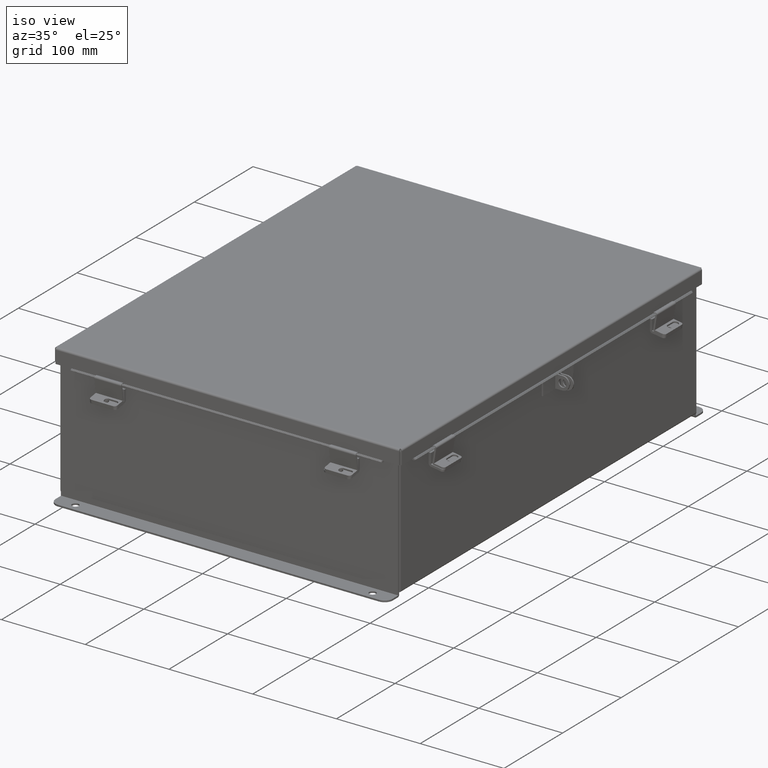
[diagram: clean part render]
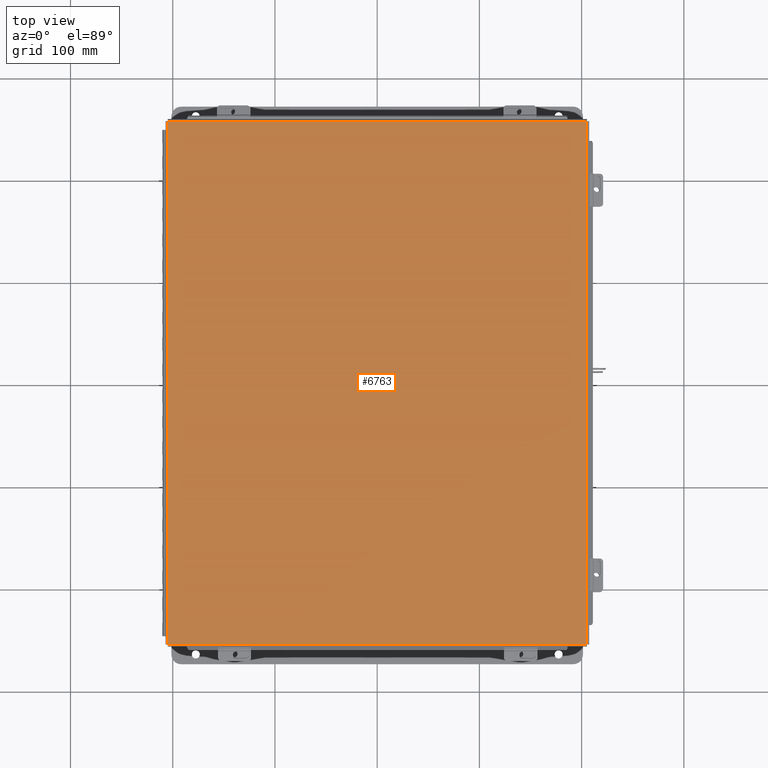
[diagram: tour spotlight — one face highlighted and labeled with its STEP entity id]
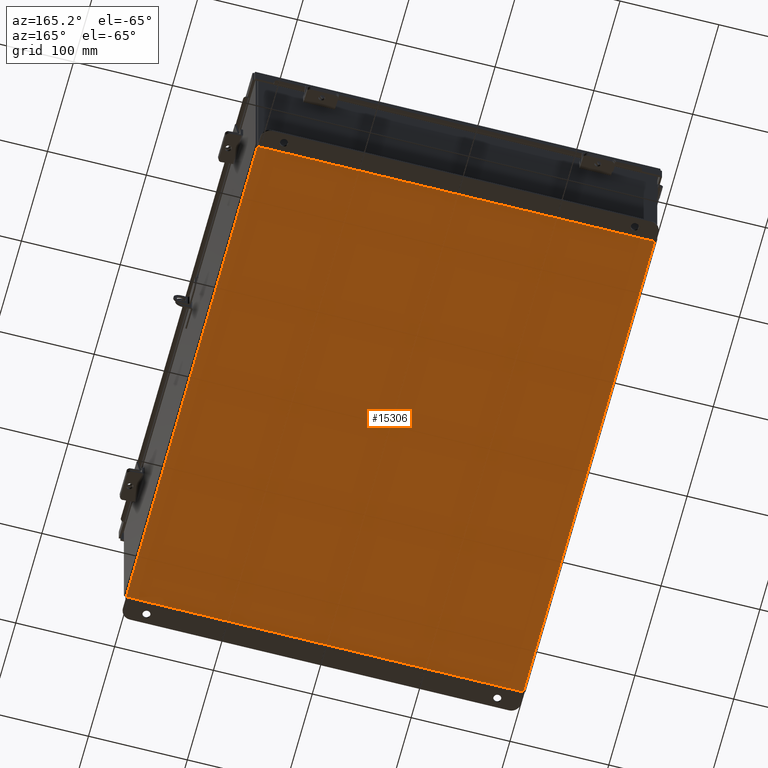
[diagram: tour spotlight — one face highlighted and labeled with its STEP entity id]
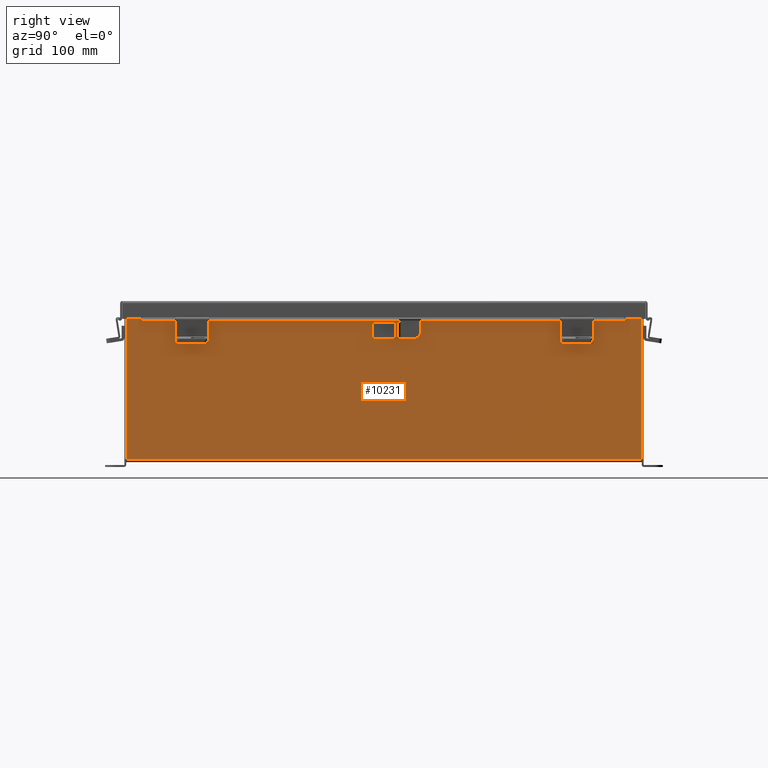
[diagram: tour spotlight — one face highlighted and labeled with its STEP entity id]
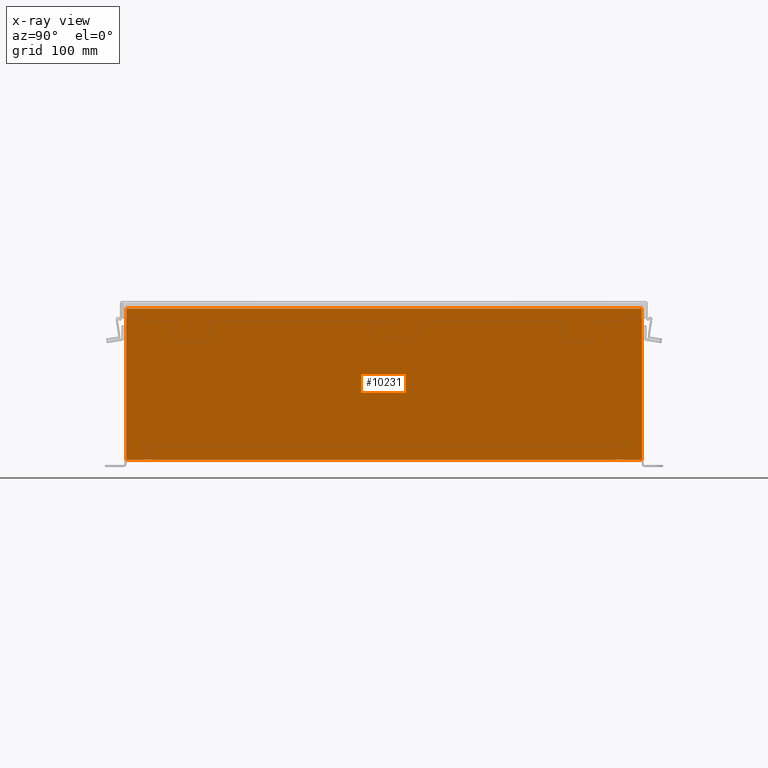
[diagram: x-ray of the same camera — body ghosted, this tour face saturated]
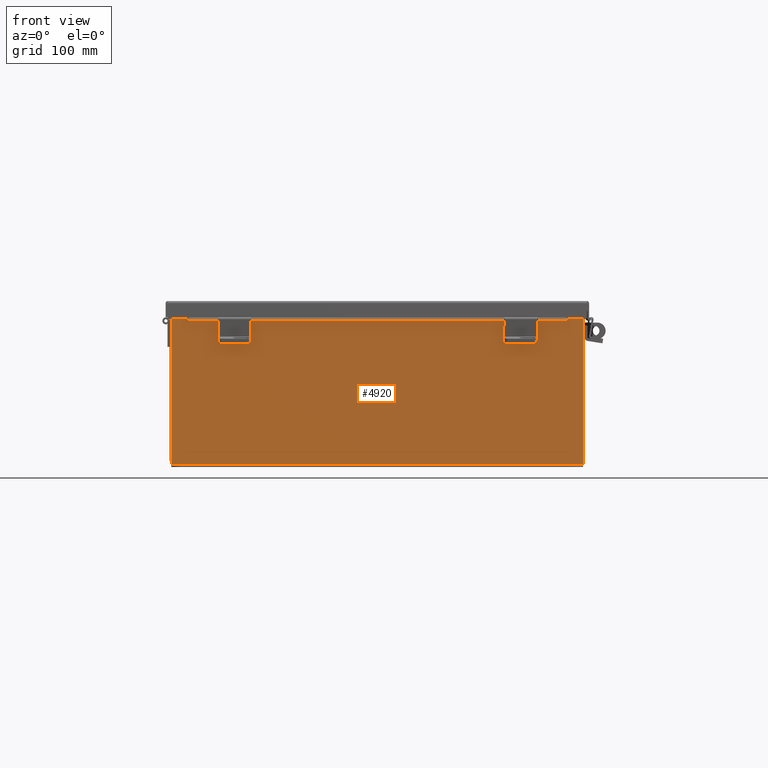
[diagram: tour spotlight — one face highlighted and labeled with its STEP entity id]
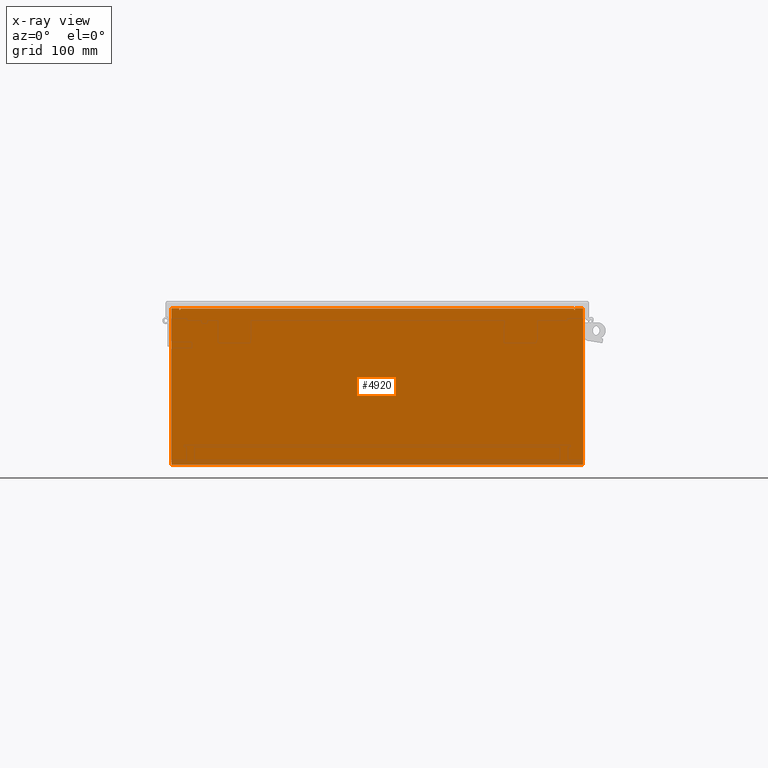
[diagram: x-ray of the same camera — body ghosted, this tour face saturated]
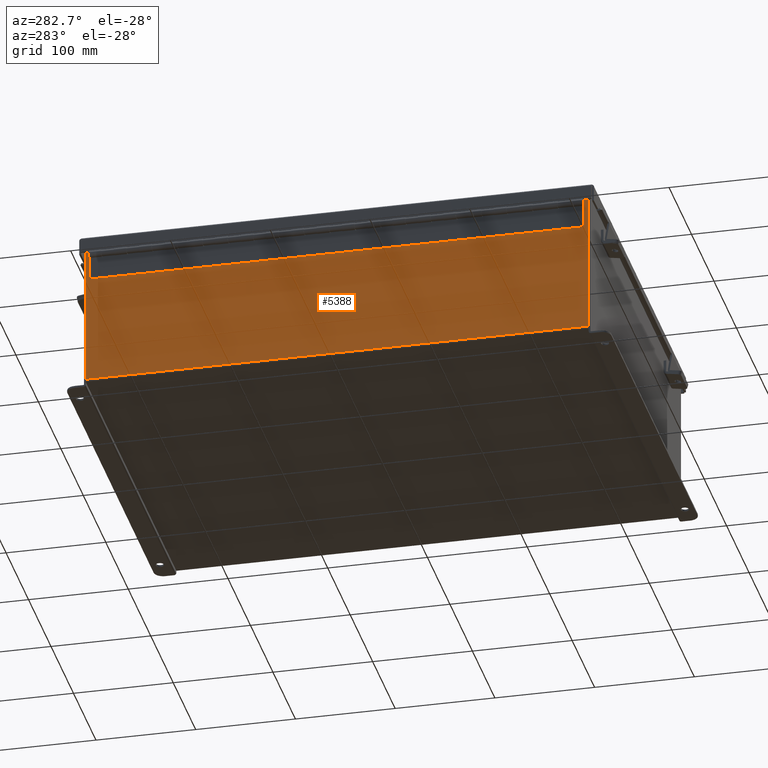
[diagram: tour spotlight — one face highlighted and labeled with its STEP entity id]
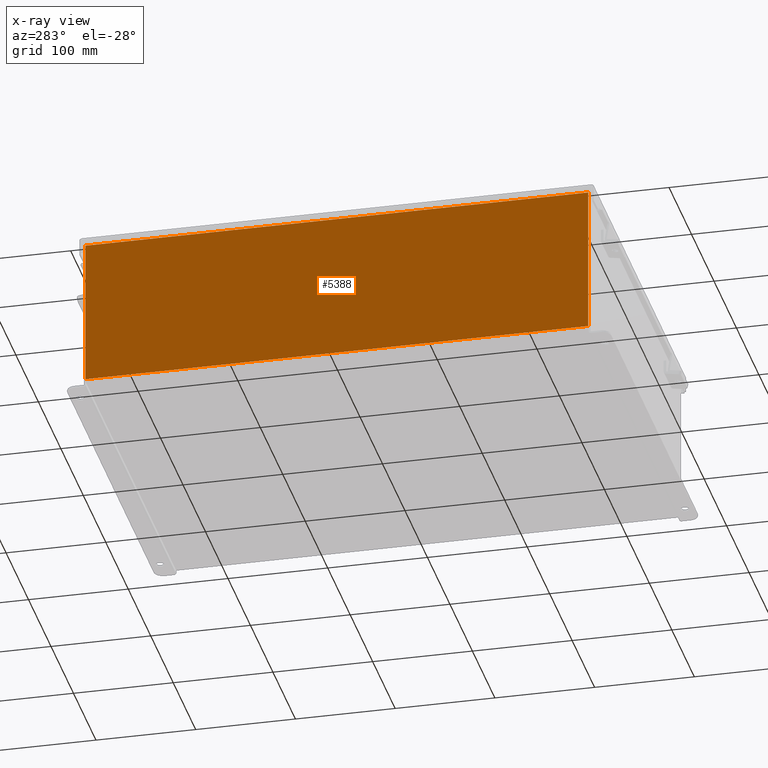
[diagram: x-ray of the same camera — body ghosted, this tour face saturated]
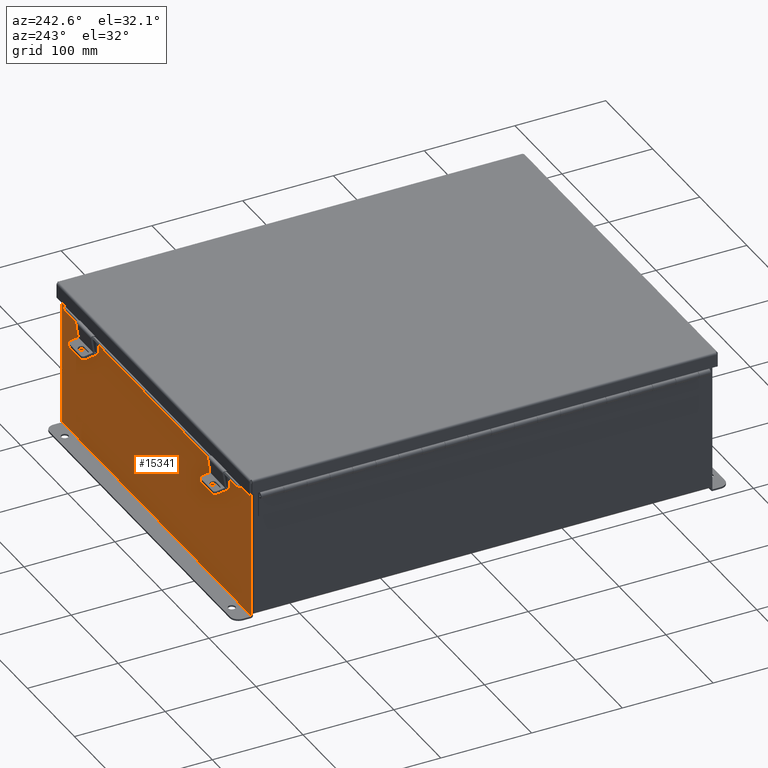
[diagram: tour spotlight — one face highlighted and labeled with its STEP entity id]
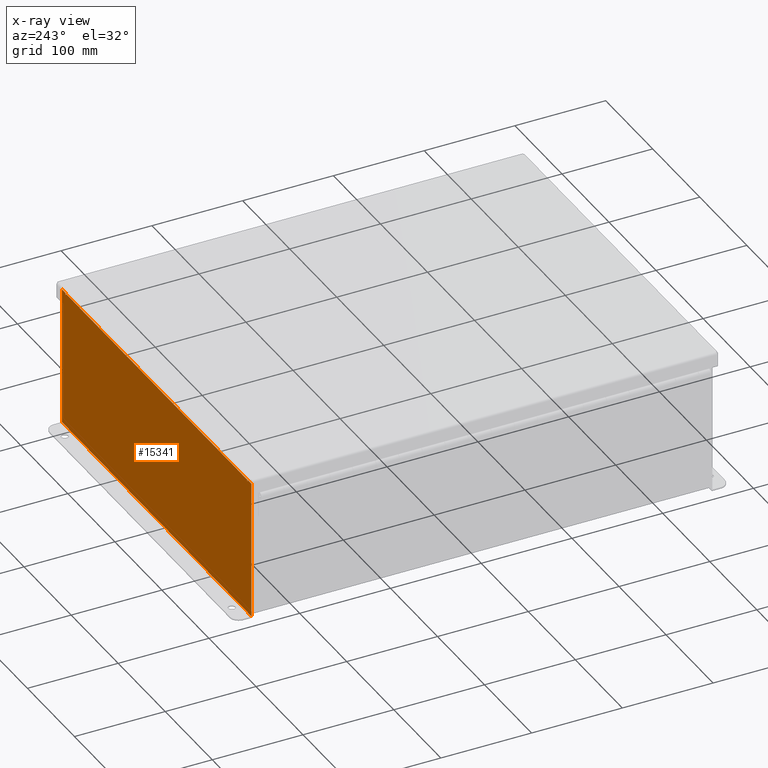
[diagram: x-ray of the same camera — body ghosted, this tour face saturated]
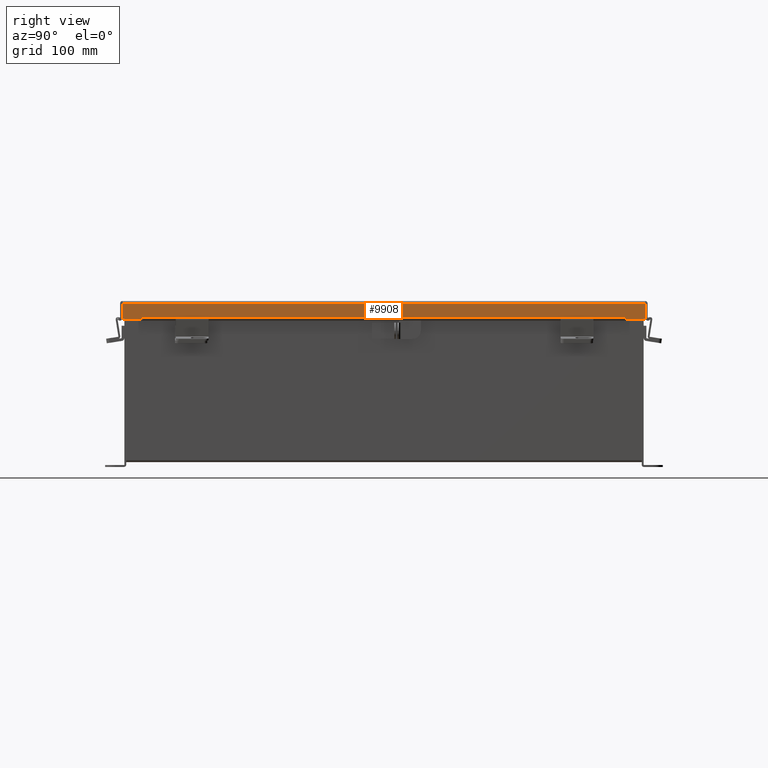
[diagram: tour spotlight — one face highlighted and labeled with its STEP entity id]
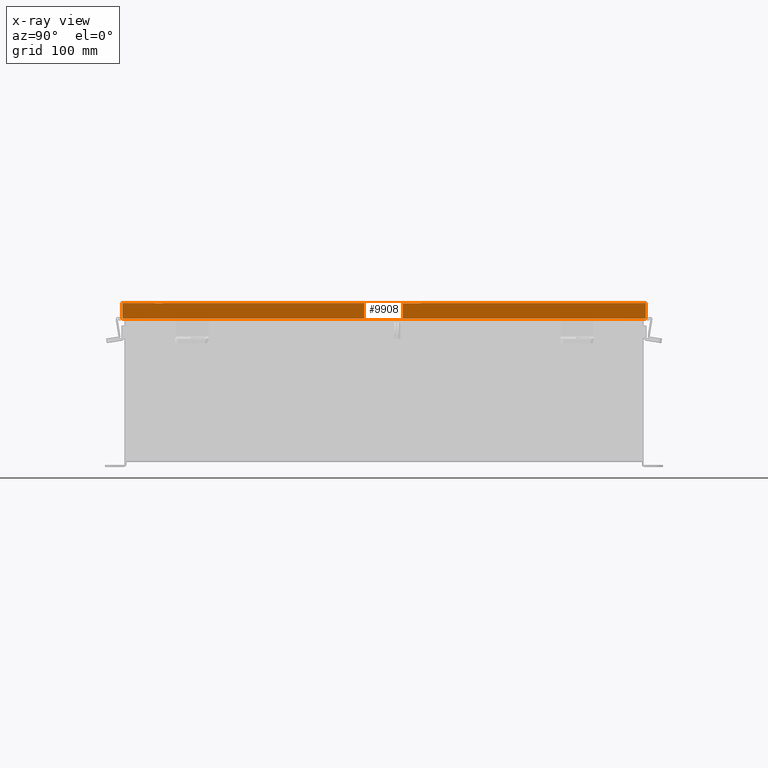
[diagram: x-ray of the same camera — body ghosted, this tour face saturated]
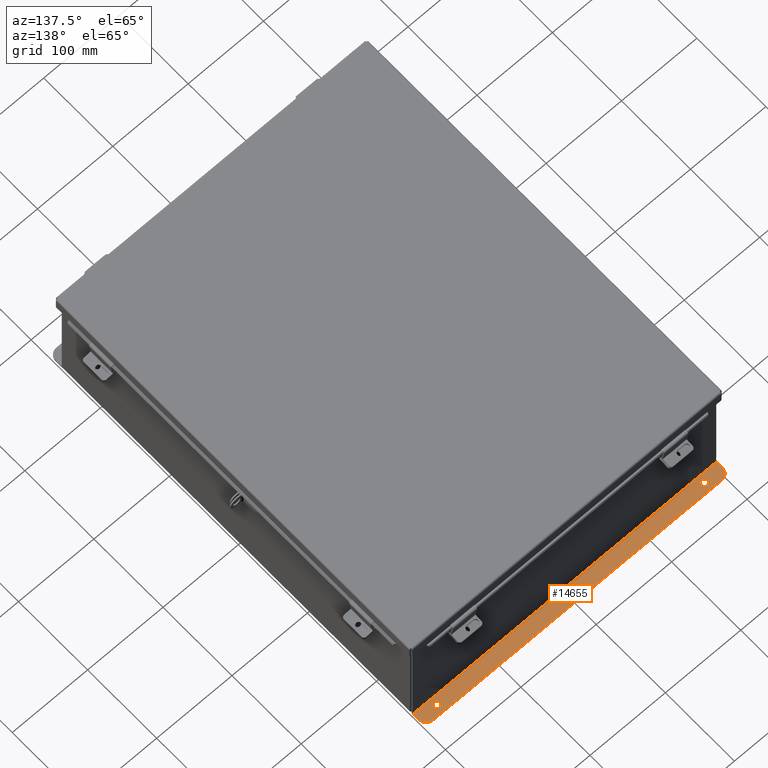
[diagram: tour spotlight — one face highlighted and labeled with its STEP entity id]
A machine part: a face-by-face anatomy tour. The part has 938 B-rep faces; the first image is the clean iso view, then the 8 largest visible faces are spotlighted one at a time (largest first), each with its STEP entity span.

Face 1 — top view, entity #6763. In plain terms, the highlighted planar face has unit normal (-0, -0, 1).
Definition (entity closure, byte-faithful):
#278 = EDGE_CURVE ( 'NONE', #19620, #10217, #14873, .T. ) ;
#578 = VECTOR ( 'NONE', #3265, 39.37007874015748100 ) ;
#842 = VECTOR ( 'NONE', #16515, 39.37007874015748100 ) ;
#1378 = EDGE_CURVE ( 'NONE', #10217, #16208, #5460, .T. ) ;
#1977 = CARTESIAN_POINT ( 'NONE',  ( 8.068550000000000100, 10.07447893218811600, -0.07470000000000015500 ) ) ;
#2604 = CARTESIAN_POINT ( 'NONE',  ( -8.068549999999998300, -10.07447893218815200, -0.07469999999999907300 ) ) ;
#2876 = CARTESIAN_POINT ( 'NONE',  ( 8.068550000000000100, -10.06855000000001600, -0.07470000000000015500 ) ) ;
#3265 = DIRECTION ( 'NONE',  ( 1.000000000000000000, 2.258600338820354400E-033, -0.0000000000000000000 ) ) ;
#4942 = ORIENTED_EDGE ( 'NONE', *, *, #7373, .T. ) ;
#5221 = LINE ( 'NONE', #2604, #21476 ) ;
#5460 = LINE ( 'NONE', #1977, #842 ) ;
#5511 = CARTESIAN_POINT ( 'NONE',  ( -8.074478932188133800, 10.06854999999998100, -0.07470000000000015500 ) ) ;
#6502 = CARTESIAN_POINT ( 'NONE',  ( 8.068550000000000100, 10.06854999999998100, -0.07470000000000015500 ) ) ;
#6763 = ADVANCED_FACE ( 'NONE', ( #22045 ), #11954, .T. ) ;
#7373 = EDGE_CURVE ( 'NONE', #19088, #19620, #5221, .T. ) ;
#7616 = LINE ( 'NONE', #8020, #16787 ) ;
#8020 = CARTESIAN_POINT ( 'NONE',  ( 8.074478932188135600, -10.06855000000001600, -0.07470000000000015500 ) ) ;
#10217 = VERTEX_POINT ( 'NONE', #6502 ) ;
#11954 = PLANE ( 'NONE',  #15662 ) ;
#14791 = EDGE_LOOP ( 'NONE', ( #15366, #17441, #20708, #4942 ) ) ;
#14873 = LINE ( 'NONE', #5511, #578 ) ;
#15325 = DIRECTION ( 'NONE',  ( -1.000000000000000000, -2.258600338820354400E-033, 0.0000000000000000000 ) ) ;
#15366 = ORIENTED_EDGE ( 'NONE', *, *, #278, .T. ) ;
#15662 = AXIS2_PLACEMENT_3D ( 'NONE', #17977, #21314, #15325 ) ;
#16208 = VERTEX_POINT ( 'NONE', #2876 ) ;
#16515 = DIRECTION ( 'NONE',  ( -2.258600338820354400E-033, -1.000000000000000000, -0.0000000000000000000 ) ) ;
#16787 = VECTOR ( 'NONE', #20167, 39.37007874015748100 ) ;
#17295 = EDGE_CURVE ( 'NONE', #16208, #19088, #7616, .T. ) ;
#17312 = DIRECTION ( 'NONE',  ( 2.258600338820354400E-033, 1.000000000000000000, -0.0000000000000000000 ) ) ;
#17441 = ORIENTED_EDGE ( 'NONE', *, *, #1378, .T. ) ;
#17977 = CARTESIAN_POINT ( 'NONE',  ( 0.0000000000000000000, 0.0000000000000000000, -0.07470000000000015500 ) ) ;
#19088 = VERTEX_POINT ( 'NONE', #21698 ) ;
#19620 = VERTEX_POINT ( 'NONE', #20089 ) ;
#20089 = CARTESIAN_POINT ( 'NONE',  ( -8.068549999999998300, 10.06854999999998100, -0.07470000000000015500 ) ) ;
#20167 = DIRECTION ( 'NONE',  ( -1.000000000000000000, -2.258600338820354400E-033, -0.0000000000000000000 ) ) ;
#20708 = ORIENTED_EDGE ( 'NONE', *, *, #17295, .T. ) ;
#21314 = DIRECTION ( 'NONE',  ( -0.0000000000000000000, 0.0000000000000000000, -1.000000000000000000 ) ) ;
#21476 = VECTOR ( 'NONE', #17312, 39.37007874015748100 ) ;
#21698 = CARTESIAN_POINT ( 'NONE',  ( -8.068549999999998300, -10.06855000000001600, -0.07469999999999907300 ) ) ;
#22045 = FACE_OUTER_BOUND ( 'NONE', #14791, .T. ) ;

Face 2 — auxiliary view, entity #15306. In plain terms, the highlighted planar face has unit normal (0, 0, -1).
Definition (entity closure, byte-faithful):
#909 = FACE_OUTER_BOUND ( 'NONE', #10105, .T. ) ;
#1624 = VECTOR ( 'NONE', #19201, 39.37007874015748100 ) ;
#2149 = EDGE_CURVE ( 'NONE', #16417, #21016, #2190, .T. ) ;
#2190 = LINE ( 'NONE', #12548, #1624 ) ;
#2337 = AXIS2_PLACEMENT_3D ( 'NONE', #17478, #19333, #8932 ) ;
#2803 = DIRECTION ( 'NONE',  ( -0.0000000000000000000, 1.000000000000000000, 8.208677865577646300E-017 ) ) ;
#4597 = ORIENTED_EDGE ( 'NONE', *, *, #11746, .T. ) ;
#4973 = CARTESIAN_POINT ( 'NONE',  ( 7.912300000000002800, 9.925299999999992900, -0.07469999999999994700 ) ) ;
#5170 = DIRECTION ( 'NONE',  ( 1.000000000000000000, -1.365923996832131600E-016, 0.0000000000000000000 ) ) ;
#5197 = VECTOR ( 'NONE', #2803, 39.37007874015748100 ) ;
#5503 = PLANE ( 'NONE',  #2337 ) ;
#6142 = EDGE_CURVE ( 'NONE', #12756, #15112, #10891, .T. ) ;
#6297 = LINE ( 'NONE', #18335, #5197 ) ;
#7440 = VECTOR ( 'NONE', #5170, 39.37007874015748100 ) ;
#7461 = ORIENTED_EDGE ( 'NONE', *, *, #7805, .T. ) ;
#7805 = EDGE_CURVE ( 'NONE', #12756, #21016, #6297, .T. ) ;
#7820 = CARTESIAN_POINT ( 'NONE',  ( -7.912299999999996600, 9.925299999999998200, -0.07470000000000000300 ) ) ;
#8611 = CARTESIAN_POINT ( 'NONE',  ( -7.912299999999996600, -9.925299999999998200, -0.07470000000000130700 ) ) ;
#8932 = DIRECTION ( 'NONE',  ( -1.000000000000000000, 0.0000000000000000000, -0.0000000000000000000 ) ) ;
#10105 = EDGE_LOOP ( 'NONE', ( #10167, #4597, #22114, #7461 ) ) ;
#10167 = ORIENTED_EDGE ( 'NONE', *, *, #2149, .F. ) ;
#10891 = LINE ( 'NONE', #12764, #7440 ) ;
#11746 = EDGE_CURVE ( 'NONE', #16417, #15112, #14543, .T. ) ;
#12548 = CARTESIAN_POINT ( 'NONE',  ( -7.999999999999996400, 9.925299999999998200, -0.07470000000000000300 ) ) ;
#12640 = DIRECTION ( 'NONE',  ( -0.0000000000000000000, -1.000000000000000000, -0.0000000000000000000 ) ) ;
#12756 = VERTEX_POINT ( 'NONE', #8611 ) ;
#12764 = CARTESIAN_POINT ( 'NONE',  ( -7.999999999999996400, -9.925299999999998200, -0.07470000000000000300 ) ) ;
#14543 = LINE ( 'NONE', #21369, #18616 ) ;
#15112 = VERTEX_POINT ( 'NONE', #16962 ) ;
#15306 = ADVANCED_FACE ( 'NONE', ( #909 ), #5503, .T. ) ;
#16417 = VERTEX_POINT ( 'NONE', #4973 ) ;
#16962 = CARTESIAN_POINT ( 'NONE',  ( 7.912300000000002800, -9.925300000000000000, -0.07470000000000000300 ) ) ;
#17478 = CARTESIAN_POINT ( 'NONE',  ( 0.0000000000000000000, 0.0000000000000000000, -0.07470000000000000300 ) ) ;
#18335 = CARTESIAN_POINT ( 'NONE',  ( -7.912299999999996600, -9.925299999999998200, -0.07470000000000130700 ) ) ;
#18616 = VECTOR ( 'NONE', #12640, 39.37007874015748100 ) ;
#19201 = DIRECTION ( 'NONE',  ( -1.000000000000000000, -0.0000000000000000000, -0.0000000000000000000 ) ) ;
#19333 = DIRECTION ( 'NONE',  ( 0.0000000000000000000, 0.0000000000000000000, -1.000000000000000000 ) ) ;
#21016 = VERTEX_POINT ( 'NONE', #7820 ) ;
#21369 = CARTESIAN_POINT ( 'NONE',  ( 7.912300000000002800, 9.925299999999996500, -0.07469999999999994700 ) ) ;
#22114 = ORIENTED_EDGE ( 'NONE', *, *, #6142, .F. ) ;

Face 3 — right view, entity #10231. An x-ray twin of the same camera follows (body ghosted, this face saturated) — the face is partly hidden behind the body. In plain terms, the highlighted planar face has unit normal (-1, 0, 0).
Definition (entity closure, byte-faithful):
#593 = DIRECTION ( 'NONE',  ( -0.0000000000000000000, -1.000000000000000000, -0.0000000000000000000 ) ) ;
#1146 = VECTOR ( 'NONE', #593, 39.37007874015748100 ) ;
#1733 = EDGE_CURVE ( 'NONE', #2359, #7485, #13202, .T. ) ;
#2006 = CARTESIAN_POINT ( 'NONE',  ( 8.000000000000003600, -9.925300000000000000, 0.01299999999999984300 ) ) ;
#2359 = VERTEX_POINT ( 'NONE', #19436 ) ;
#2675 = FACE_OUTER_BOUND ( 'NONE', #20080, .T. ) ;
#3644 = EDGE_CURVE ( 'NONE', #7674, #7485, #5650, .T. ) ;
#4620 = ORIENTED_EDGE ( 'NONE', *, *, #1733, .F. ) ;
#4816 = DIRECTION ( 'NONE',  ( -1.000000000000000000, 0.0000000000000000000, 3.548703509357741000E-015 ) ) ;
#5076 = VECTOR ( 'NONE', #17102, 39.37007874015748100 ) ;
#5650 = LINE ( 'NONE', #19895, #5076 ) ;
#6385 = ORIENTED_EDGE ( 'NONE', *, *, #3644, .T. ) ;
#6702 = CARTESIAN_POINT ( 'NONE',  ( 8.000000000000023100, 9.925299999999992900, 5.837600000000000100 ) ) ;
#6741 = DIRECTION ( 'NONE',  ( 3.548703509357741800E-015, -3.735477378271307500E-016, 1.000000000000000000 ) ) ;
#7485 = VERTEX_POINT ( 'NONE', #2006 ) ;
#7674 = VERTEX_POINT ( 'NONE', #21505 ) ;
#7946 = EDGE_CURVE ( 'NONE', #2359, #11475, #21451, .T. ) ;
#9057 = ORIENTED_EDGE ( 'NONE', *, *, #22293, .T. ) ;
#9991 = CARTESIAN_POINT ( 'NONE',  ( 8.000000000000003600, -9.925300000000000000, 0.01299999999999984300 ) ) ;
#10231 = ADVANCED_FACE ( 'NONE', ( #2675 ), #22098, .F. ) ;
#10903 = CARTESIAN_POINT ( 'NONE',  ( 8.000000000000023100, 9.925299999999996500, 5.837600000000000100 ) ) ;
#11475 = VERTEX_POINT ( 'NONE', #6702 ) ;
#12669 = VECTOR ( 'NONE', #15918, 39.37007874015748100 ) ;
#13202 = LINE ( 'NONE', #9991, #12669 ) ;
#15918 = DIRECTION ( 'NONE',  ( -0.0000000000000000000, -1.000000000000000000, -0.0000000000000000000 ) ) ;
#16897 = DIRECTION ( 'NONE',  ( 3.548703509357741000E-015, 0.0000000000000000000, 1.000000000000000000 ) ) ;
#17049 = CARTESIAN_POINT ( 'NONE',  ( 8.000000000000003600, 9.925299999999998200, -2.494518699214680400E-014 ) ) ;
#17102 = DIRECTION ( 'NONE',  ( -3.548703509357741800E-015, 0.0000000000000000000, -1.000000000000000000 ) ) ;
#18562 = CARTESIAN_POINT ( 'NONE',  ( 8.000000000000003600, 0.0000000000000000000, -2.865025583355396000E-014 ) ) ;
#18982 = LINE ( 'NONE', #10903, #1146 ) ;
#19436 = CARTESIAN_POINT ( 'NONE',  ( 8.000000000000003600, 9.925299999999992900, 0.01299999999999984300 ) ) ;
#19895 = CARTESIAN_POINT ( 'NONE',  ( 8.000000000000003600, -9.925300000000000000, -2.865025583355396000E-014 ) ) ;
#20080 = EDGE_LOOP ( 'NONE', ( #9057, #6385, #4620, #21844 ) ) ;
#20680 = AXIS2_PLACEMENT_3D ( 'NONE', #18562, #4816, #16897 ) ;
#20923 = VECTOR ( 'NONE', #6741, 39.37007874015748100 ) ;
#21451 = LINE ( 'NONE', #17049, #20923 ) ;
#21505 = CARTESIAN_POINT ( 'NONE',  ( 8.000000000000023100, -9.925300000000000000, 5.837600000000000100 ) ) ;
#21844 = ORIENTED_EDGE ( 'NONE', *, *, #7946, .T. ) ;
#22098 = PLANE ( 'NONE',  #20680 ) ;
#22293 = EDGE_CURVE ( 'NONE', #11475, #7674, #18982, .T. ) ;

Face 4 — front view, entity #4920. An x-ray twin of the same camera follows (body ghosted, this face saturated) — the face is partly hidden behind the body. In plain terms, the highlighted planar face has unit normal (-0, 1, -0).
Definition (entity closure, byte-faithful):
#157 = DIRECTION ( 'NONE',  ( 4.910036603141682400E-031, 1.000000000000000000, -0.0000000000000000000 ) ) ;
#209 = LINE ( 'NONE', #22349, #13380 ) ;
#795 = CARTESIAN_POINT ( 'NONE',  ( -7.925299999999992000, 0.0000000000000000000, -3.099299999999999900 ) ) ;
#913 = VERTEX_POINT ( 'NONE', #1919 ) ;
#1014 = VERTEX_POINT ( 'NONE', #14169 ) ;
#1346 = VECTOR ( 'NONE', #21010, 39.37007874015748100 ) ;
#1415 = VERTEX_POINT ( 'NONE', #4454 ) ;
#1585 = DIRECTION ( 'NONE',  ( 0.0000000000000000000, 0.0000000000000000000, -1.000000000000000000 ) ) ;
#1662 = VERTEX_POINT ( 'NONE', #11317 ) ;
#1710 = VERTEX_POINT ( 'NONE', #11493 ) ;
#1919 = CARTESIAN_POINT ( 'NONE',  ( -7.582299999999992900, 2.185478394931410600E-015, 2.912299999999998800 ) ) ;
#2823 = CARTESIAN_POINT ( 'NONE',  ( -7.619649999999992900, 0.0000000000000000000, 2.925300000000000000 ) ) ;
#3061 = CARTESIAN_POINT ( 'NONE',  ( -7.925299999999992000, 0.0000000000000000000, 2.925300000000000000 ) ) ;
#3070 = LINE ( 'NONE', #15095, #20953 ) ;
#3099 = LINE ( 'NONE', #21144, #12219 ) ;
#3101 = EDGE_CURVE ( 'NONE', #1662, #19123, #16438, .T. ) ;
#3121 = LINE ( 'NONE', #6463, #15786 ) ;
#3160 = DIRECTION ( 'NONE',  ( 4.910036603141682400E-031, 1.000000000000000000, -0.0000000000000000000 ) ) ;
#3387 = CARTESIAN_POINT ( 'NONE',  ( 7.600975000000005400, 0.0000000000000000000, 2.874949999999997900 ) ) ;
#4454 = CARTESIAN_POINT ( 'NONE',  ( -7.925299999999992000, 0.0000000000000000000, 2.925300000000000000 ) ) ;
#4560 = CARTESIAN_POINT ( 'NONE',  ( 7.925300000000007100, 0.0000000000000000000, 2.925300000000000000 ) ) ;
#4785 = CARTESIAN_POINT ( 'NONE',  ( -7.582299999999992900, 2.185478394931410600E-015, 2.912299999999998800 ) ) ;
#4920 = ADVANCED_FACE ( 'NONE', ( #11445 ), #7312, .F. ) ;
#5103 = VERTEX_POINT ( 'NONE', #17032 ) ;
#5706 = VECTOR ( 'NONE', #6544, 39.37007874015748100 ) ;
#5793 = ORIENTED_EDGE ( 'NONE', *, *, #19685, .T. ) ;
#5886 = VERTEX_POINT ( 'NONE', #795 ) ;
#6085 = EDGE_CURVE ( 'NONE', #5886, #5103, #7955, .T. ) ;
#6463 = CARTESIAN_POINT ( 'NONE',  ( 7.925300000000007100, 0.0000000000000000000, 2.925300000000000000 ) ) ;
#6542 = DIRECTION ( 'NONE',  ( 0.0000000000000000000, 0.0000000000000000000, 1.000000000000000000 ) ) ;
#6544 = DIRECTION ( 'NONE',  ( 1.000000000000000000, 4.910036603141682400E-031, -0.0000000000000000000 ) ) ;
#7148 = CARTESIAN_POINT ( 'NONE',  ( -7.925299999999992000, 0.0000000000000000000, 2.925300000000000000 ) ) ;
#7159 = ORIENTED_EDGE ( 'NONE', *, *, #16405, .F. ) ;
#7312 = PLANE ( 'NONE',  #13266 ) ;
#7653 = VECTOR ( 'NONE', #16858, 39.37007874015748100 ) ;
#7955 = LINE ( 'NONE', #12252, #21274 ) ;
#8141 = ORIENTED_EDGE ( 'NONE', *, *, #19232, .F. ) ;
#8165 = LINE ( 'NONE', #3061, #7653 ) ;
#8399 = CARTESIAN_POINT ( 'NONE',  ( 0.0000000000000000000, 0.0000000000000000000, 0.0000000000000000000 ) ) ;
#9381 = VECTOR ( 'NONE', #15767, 39.37007874015748100 ) ;
#9455 = VERTEX_POINT ( 'NONE', #2823 ) ;
#10161 = CARTESIAN_POINT ( 'NONE',  ( 7.619649999999997400, 0.0000000000000000000, 0.0000000000000000000 ) ) ;
#10224 = LINE ( 'NONE', #4785, #5706 ) ;
#10302 = ORIENTED_EDGE ( 'NONE', *, *, #11420, .T. ) ;
#10703 = DIRECTION ( 'NONE',  ( 1.000000000000000000, 4.910036603141682400E-031, 0.0000000000000000000 ) ) ;
#11305 = CARTESIAN_POINT ( 'NONE',  ( -7.619649999999992000, 0.0000000000000000000, 2.874949999999997900 ) ) ;
#11317 = CARTESIAN_POINT ( 'NONE',  ( 7.619650000000005400, 0.0000000000000000000, 2.874949999999997900 ) ) ;
#11324 = DIRECTION ( 'NONE',  ( 1.000000000000000000, 4.910036603141682400E-031, -0.0000000000000000000 ) ) ;
#11420 = EDGE_CURVE ( 'NONE', #913, #1710, #10224, .T. ) ;
#11445 = FACE_OUTER_BOUND ( 'NONE', #12456, .T. ) ;
#11493 = CARTESIAN_POINT ( 'NONE',  ( 7.582300000000006300, 0.0000000000000000000, 2.912299999999998800 ) ) ;
#11678 = EDGE_CURVE ( 'NONE', #1415, #9455, #19762, .T. ) ;
#12160 = AXIS2_PLACEMENT_3D ( 'NONE', #3387, #157, #20617 ) ;
#12166 = EDGE_CURVE ( 'NONE', #913, #18988, #13984, .T. ) ;
#12219 = VECTOR ( 'NONE', #10703, 39.37007874015748100 ) ;
#12252 = CARTESIAN_POINT ( 'NONE',  ( -7.925299999999992000, 0.0000000000000000000, -3.099299999999999900 ) ) ;
#12456 = EDGE_LOOP ( 'NONE', ( #17366, #8141, #18684, #10302, #16592, #18477, #7159, #13020, #5793, #16282, #17085, #15449 ) ) ;
#12737 = LINE ( 'NONE', #10161, #21488 ) ;
#13020 = ORIENTED_EDGE ( 'NONE', *, *, #15911, .T. ) ;
#13266 = AXIS2_PLACEMENT_3D ( 'NONE', #8399, #21388, #16814 ) ;
#13380 = VECTOR ( 'NONE', #22427, 39.37007874015748100 ) ;
#13435 = CARTESIAN_POINT ( 'NONE',  ( -7.600974999999992900, 0.0000000000000000000, 2.874949999999997900 ) ) ;
#13984 = LINE ( 'NONE', #14001, #9381 ) ;
#14001 = CARTESIAN_POINT ( 'NONE',  ( -7.582300000000001800, 0.0000000000000000000, 0.0000000000000000000 ) ) ;
#14169 = CARTESIAN_POINT ( 'NONE',  ( 7.619650000000006300, 0.0000000000000000000, 2.925300000000000000 ) ) ;
#15095 = CARTESIAN_POINT ( 'NONE',  ( -7.619650000000001800, 0.0000000000000000000, 0.0000000000000000000 ) ) ;
#15206 = DIRECTION ( 'NONE',  ( 0.0000000000000000000, 0.0000000000000000000, -1.000000000000000000 ) ) ;
#15449 = ORIENTED_EDGE ( 'NONE', *, *, #11678, .T. ) ;
#15613 = EDGE_CURVE ( 'NONE', #5886, #1415, #8165, .T. ) ;
#15619 = EDGE_CURVE ( 'NONE', #19595, #9455, #3070, .T. ) ;
#15767 = DIRECTION ( 'NONE',  ( 0.0000000000000000000, 0.0000000000000000000, -1.000000000000000000 ) ) ;
#15786 = VECTOR ( 'NONE', #16776, 39.37007874015748100 ) ;
#15911 = EDGE_CURVE ( 'NONE', #1014, #19637, #3099, .T. ) ;
#16282 = ORIENTED_EDGE ( 'NONE', *, *, #6085, .F. ) ;
#16405 = EDGE_CURVE ( 'NONE', #1014, #1662, #12737, .T. ) ;
#16438 = CIRCLE ( 'NONE', #12160, 0.01867500000000003900 ) ;
#16592 = ORIENTED_EDGE ( 'NONE', *, *, #18237, .F. ) ;
#16776 = DIRECTION ( 'NONE',  ( 0.0000000000000000000, 0.0000000000000000000, -1.000000000000000000 ) ) ;
#16814 = DIRECTION ( 'NONE',  ( 0.0000000000000000000, 0.0000000000000000000, -1.000000000000000000 ) ) ;
#16858 = DIRECTION ( 'NONE',  ( 0.0000000000000000000, 0.0000000000000000000, 1.000000000000000000 ) ) ;
#17032 = CARTESIAN_POINT ( 'NONE',  ( 7.925300000000007100, 0.0000000000000000000, -3.099299999999999900 ) ) ;
#17085 = ORIENTED_EDGE ( 'NONE', *, *, #15613, .T. ) ;
#17366 = ORIENTED_EDGE ( 'NONE', *, *, #15619, .F. ) ;
#18237 = EDGE_CURVE ( 'NONE', #19123, #1710, #209, .T. ) ;
#18318 = CARTESIAN_POINT ( 'NONE',  ( 7.582300000000006300, 0.0000000000000000000, 2.874949999999997900 ) ) ;
#18477 = ORIENTED_EDGE ( 'NONE', *, *, #3101, .F. ) ;
#18684 = ORIENTED_EDGE ( 'NONE', *, *, #12166, .F. ) ;
#18988 = VERTEX_POINT ( 'NONE', #19751 ) ;
#19123 = VERTEX_POINT ( 'NONE', #18318 ) ;
#19232 = EDGE_CURVE ( 'NONE', #18988, #19595, #21554, .T. ) ;
#19595 = VERTEX_POINT ( 'NONE', #11305 ) ;
#19637 = VERTEX_POINT ( 'NONE', #4560 ) ;
#19685 = EDGE_CURVE ( 'NONE', #19637, #5103, #3121, .T. ) ;
#19751 = CARTESIAN_POINT ( 'NONE',  ( -7.582299999999992900, 0.0000000000000000000, 2.874949999999997900 ) ) ;
#19762 = LINE ( 'NONE', #7148, #1346 ) ;
#20410 = AXIS2_PLACEMENT_3D ( 'NONE', #13435, #3160, #15206 ) ;
#20617 = DIRECTION ( 'NONE',  ( 0.0000000000000000000, 0.0000000000000000000, -1.000000000000000000 ) ) ;
#20953 = VECTOR ( 'NONE', #6542, 39.37007874015748100 ) ;
#21010 = DIRECTION ( 'NONE',  ( 1.000000000000000000, 4.910036603141682400E-031, 0.0000000000000000000 ) ) ;
#21144 = CARTESIAN_POINT ( 'NONE',  ( -7.925299999999992000, 0.0000000000000000000, 2.925300000000000000 ) ) ;
#21274 = VECTOR ( 'NONE', #11324, 39.37007874015748100 ) ;
#21388 = DIRECTION ( 'NONE',  ( -4.910036603141682400E-031, -1.000000000000000000, -0.0000000000000000000 ) ) ;
#21488 = VECTOR ( 'NONE', #1585, 39.37007874015748100 ) ;
#21554 = CIRCLE ( 'NONE', #20410, 0.01867500000000003900 ) ;
#22349 = CARTESIAN_POINT ( 'NONE',  ( 7.582299999999997400, 0.0000000000000000000, 0.0000000000000000000 ) ) ;
#22427 = DIRECTION ( 'NONE',  ( 0.0000000000000000000, 0.0000000000000000000, 1.000000000000000000 ) ) ;

Face 5 — auxiliary view, entity #5388. An x-ray twin of the same camera follows (body ghosted, this face saturated) — the face is partly hidden behind the body. In plain terms, the highlighted planar face has unit normal (1, 0, 0).
Definition (entity closure, byte-faithful):
#433 = EDGE_CURVE ( 'NONE', #12533, #19195, #3022, .T. ) ;
#1099 = VECTOR ( 'NONE', #12081, 39.37007874015748100 ) ;
#1132 = CARTESIAN_POINT ( 'NONE',  ( -7.999999999999996400, 0.0000000000000000000, -2.865025583355396000E-014 ) ) ;
#1206 = CARTESIAN_POINT ( 'NONE',  ( -8.000000000000017800, 9.925299999999998200, 5.837599999999999200 ) ) ;
#1611 = AXIS2_PLACEMENT_3D ( 'NONE', #1132, #18558, #10811 ) ;
#2170 = EDGE_CURVE ( 'NONE', #3240, #19269, #5714, .T. ) ;
#2478 = VECTOR ( 'NONE', #3018, 39.37007874015748100 ) ;
#2744 = ORIENTED_EDGE ( 'NONE', *, *, #2170, .F. ) ;
#3018 = DIRECTION ( 'NONE',  ( 0.0000000000000000000, 1.000000000000000000, 0.0000000000000000000 ) ) ;
#3022 = LINE ( 'NONE', #10064, #2478 ) ;
#3240 = VERTEX_POINT ( 'NONE', #15835 ) ;
#4407 = ORIENTED_EDGE ( 'NONE', *, *, #17632, .T. ) ;
#5388 = ADVANCED_FACE ( 'NONE', ( #12512 ), #21925, .F. ) ;
#5714 = LINE ( 'NONE', #20186, #1099 ) ;
#7998 = EDGE_LOOP ( 'NONE', ( #9221, #4407, #2744, #12424 ) ) ;
#9116 = LINE ( 'NONE', #17374, #13682 ) ;
#9221 = ORIENTED_EDGE ( 'NONE', *, *, #433, .T. ) ;
#10064 = CARTESIAN_POINT ( 'NONE',  ( -8.000000000000017800, -9.925299999999998200, 5.837599999999999200 ) ) ;
#10484 = DIRECTION ( 'NONE',  ( 3.548703509357741800E-015, 0.0000000000000000000, -1.000000000000000000 ) ) ;
#10811 = DIRECTION ( 'NONE',  ( 3.548703509357741000E-015, 0.0000000000000000000, -1.000000000000000000 ) ) ;
#12081 = DIRECTION ( 'NONE',  ( -1.953496330014866600E-031, 1.000000000000000000, 5.504816970095139000E-017 ) ) ;
#12424 = ORIENTED_EDGE ( 'NONE', *, *, #12464, .T. ) ;
#12464 = EDGE_CURVE ( 'NONE', #3240, #12533, #21879, .T. ) ;
#12512 = FACE_OUTER_BOUND ( 'NONE', #7998, .T. ) ;
#12533 = VERTEX_POINT ( 'NONE', #16650 ) ;
#13682 = VECTOR ( 'NONE', #10484, 39.37007874015748100 ) ;
#15125 = CARTESIAN_POINT ( 'NONE',  ( -7.999999999999996400, 9.925299999999998200, 0.01300000000000009800 ) ) ;
#15835 = CARTESIAN_POINT ( 'NONE',  ( -7.999999999999996400, -9.925299999999996500, 0.01299999999999875000 ) ) ;
#16650 = CARTESIAN_POINT ( 'NONE',  ( -8.000000000000017800, -9.925299999999996500, 5.837599999999999200 ) ) ;
#17229 = VECTOR ( 'NONE', #21691, 39.37007874015748100 ) ;
#17374 = CARTESIAN_POINT ( 'NONE',  ( -7.999999999999996400, 9.925299999999998200, -2.865025583355396000E-014 ) ) ;
#17632 = EDGE_CURVE ( 'NONE', #19195, #19269, #9116, .T. ) ;
#18558 = DIRECTION ( 'NONE',  ( 1.000000000000000000, 0.0000000000000000000, 3.548703509357741000E-015 ) ) ;
#19195 = VERTEX_POINT ( 'NONE', #1206 ) ;
#19269 = VERTEX_POINT ( 'NONE', #15125 ) ;
#20186 = CARTESIAN_POINT ( 'NONE',  ( -7.999999999999996400, 9.925299999999998200, 0.01299999999999984300 ) ) ;
#21621 = CARTESIAN_POINT ( 'NONE',  ( -7.999999999999996400, -9.925299999999998200, -2.494518699214680400E-014 ) ) ;
#21691 = DIRECTION ( 'NONE',  ( -3.548703509357741800E-015, 3.735477378271307500E-016, 1.000000000000000000 ) ) ;
#21879 = LINE ( 'NONE', #21621, #17229 ) ;
#21925 = PLANE ( 'NONE',  #1611 ) ;

Face 6 — auxiliary view, entity #15341. An x-ray twin of the same camera follows (body ghosted, this face saturated) — the face is partly hidden behind the body. In plain terms, the highlighted planar face has unit normal (0, -1, 0).
Definition (entity closure, byte-faithful):
#293 = CARTESIAN_POINT ( 'NONE',  ( -7.619650000000001800, 0.0000000000000000000, 2.925299999999999600 ) ) ;
#483 = CARTESIAN_POINT ( 'NONE',  ( -7.582300000000001800, 4.370956789862821100E-015, 2.912299999999998300 ) ) ;
#652 = VECTOR ( 'NONE', #22009, 39.37007874015748100 ) ;
#671 = CARTESIAN_POINT ( 'NONE',  ( -7.619650000000000900, 0.0000000000000000000, 2.874949999999998300 ) ) ;
#720 = CARTESIAN_POINT ( 'NONE',  ( 7.619649999999997400, 0.0000000000000000000, 0.0000000000000000000 ) ) ;
#789 = LINE ( 'NONE', #8144, #18613 ) ;
#1066 = CARTESIAN_POINT ( 'NONE',  ( -7.925300000000000900, 0.0000000000000000000, 2.925299999999999600 ) ) ;
#1584 = LINE ( 'NONE', #20701, #9653 ) ;
#1671 = VECTOR ( 'NONE', #16180, 39.37007874015748100 ) ;
#1701 = EDGE_CURVE ( 'NONE', #4191, #12188, #9183, .T. ) ;
#2274 = VERTEX_POINT ( 'NONE', #21796 ) ;
#2350 = VERTEX_POINT ( 'NONE', #20789 ) ;
#2461 = DIRECTION ( 'NONE',  ( 0.0000000000000000000, 0.0000000000000000000, -1.000000000000000000 ) ) ;
#2886 = VERTEX_POINT ( 'NONE', #21411 ) ;
#3981 = DIRECTION ( 'NONE',  ( 0.0000000000000000000, -0.0000000000000000000, -1.000000000000000000 ) ) ;
#4191 = VERTEX_POINT ( 'NONE', #671 ) ;
#4469 = ORIENTED_EDGE ( 'NONE', *, *, #20770, .F. ) ;
#4660 = CARTESIAN_POINT ( 'NONE',  ( -7.925300000000000900, 0.0000000000000000000, -3.099299999999999900 ) ) ;
#4800 = EDGE_LOOP ( 'NONE', ( #14758, #16820, #4469, #5196, #21733, #15192, #13919, #10971, #17577, #8780, #21508, #8126 ) ) ;
#4931 = VECTOR ( 'NONE', #5516, 39.37007874015748100 ) ;
#5007 = AXIS2_PLACEMENT_3D ( 'NONE', #6600, #18638, #8277 ) ;
#5065 = DIRECTION ( 'NONE',  ( 0.0000000000000000000, 0.0000000000000000000, 1.000000000000000000 ) ) ;
#5196 = ORIENTED_EDGE ( 'NONE', *, *, #9552, .T. ) ;
#5251 = LINE ( 'NONE', #4660, #652 ) ;
#5516 = DIRECTION ( 'NONE',  ( 0.0000000000000000000, 0.0000000000000000000, -1.000000000000000000 ) ) ;
#5757 = LINE ( 'NONE', #720, #14334 ) ;
#5884 = CARTESIAN_POINT ( 'NONE',  ( 7.582299999999997400, 0.0000000000000000000, 0.0000000000000000000 ) ) ;
#6119 = VERTEX_POINT ( 'NONE', #10596 ) ;
#6509 = VERTEX_POINT ( 'NONE', #12868 ) ;
#6576 = VERTEX_POINT ( 'NONE', #13381 ) ;
#6600 = CARTESIAN_POINT ( 'NONE',  ( -7.600975000000000900, 0.0000000000000000000, 2.874949999999998300 ) ) ;
#6969 = VERTEX_POINT ( 'NONE', #12739 ) ;
#7015 = CARTESIAN_POINT ( 'NONE',  ( 7.600974999999996500, 0.0000000000000000000, 2.874949999999998300 ) ) ;
#7139 = LINE ( 'NONE', #15599, #11116 ) ;
#7160 = VECTOR ( 'NONE', #10206, 39.37007874015748100 ) ;
#7454 = AXIS2_PLACEMENT_3D ( 'NONE', #7015, #16870, #21837 ) ;
#7471 = EDGE_CURVE ( 'NONE', #2350, #6969, #20389, .T. ) ;
#8126 = ORIENTED_EDGE ( 'NONE', *, *, #20684, .T. ) ;
#8144 = CARTESIAN_POINT ( 'NONE',  ( -7.582300000000001800, 4.370956789862821100E-015, 2.912299999999998300 ) ) ;
#8277 = DIRECTION ( 'NONE',  ( 0.0000000000000000000, 0.0000000000000000000, -1.000000000000000000 ) ) ;
#8468 = CARTESIAN_POINT ( 'NONE',  ( -7.925300000000000900, 0.0000000000000000000, 2.925299999999999600 ) ) ;
#8514 = CARTESIAN_POINT ( 'NONE',  ( 7.619649999999997400, 0.0000000000000000000, 2.925299999999999600 ) ) ;
#8780 = ORIENTED_EDGE ( 'NONE', *, *, #15007, .F. ) ;
#9183 = LINE ( 'NONE', #13345, #17839 ) ;
#9552 = EDGE_CURVE ( 'NONE', #21497, #6509, #789, .T. ) ;
#9653 = VECTOR ( 'NONE', #17154, 39.37007874015748100 ) ;
#10206 = DIRECTION ( 'NONE',  ( -0.0000000000000000000, -0.0000000000000000000, 1.000000000000000000 ) ) ;
#10412 = CIRCLE ( 'NONE', #5007, 0.01867500000000003900 ) ;
#10596 = CARTESIAN_POINT ( 'NONE',  ( 7.925299999999998200, 0.0000000000000000000, 2.925299999999999600 ) ) ;
#10797 = PLANE ( 'NONE',  #11530 ) ;
#10971 = ORIENTED_EDGE ( 'NONE', *, *, #20446, .T. ) ;
#11094 = VERTEX_POINT ( 'NONE', #19570 ) ;
#11116 = VECTOR ( 'NONE', #15524, 39.37007874015748100 ) ;
#11131 = LINE ( 'NONE', #8468, #7160 ) ;
#11348 = DIRECTION ( 'NONE',  ( 1.000000000000000000, 0.0000000000000000000, 0.0000000000000000000 ) ) ;
#11530 = AXIS2_PLACEMENT_3D ( 'NONE', #15956, #14272, #3981 ) ;
#11923 = VECTOR ( 'NONE', #11348, 39.37007874015748100 ) ;
#12188 = VERTEX_POINT ( 'NONE', #293 ) ;
#12488 = LINE ( 'NONE', #1066, #11923 ) ;
#12739 = CARTESIAN_POINT ( 'NONE',  ( 7.582299999999997400, 0.0000000000000000000, 2.874949999999998300 ) ) ;
#12868 = CARTESIAN_POINT ( 'NONE',  ( 7.582299999999997400, 0.0000000000000000000, 2.912299999999998300 ) ) ;
#13345 = CARTESIAN_POINT ( 'NONE',  ( -7.619650000000001800, 0.0000000000000000000, 0.0000000000000000000 ) ) ;
#13381 = CARTESIAN_POINT ( 'NONE',  ( -7.925300000000000900, 0.0000000000000000000, 2.925299999999999600 ) ) ;
#13919 = ORIENTED_EDGE ( 'NONE', *, *, #17184, .F. ) ;
#14096 = LINE ( 'NONE', #17560, #4931 ) ;
#14272 = DIRECTION ( 'NONE',  ( 0.0000000000000000000, -1.000000000000000000, 0.0000000000000000000 ) ) ;
#14334 = VECTOR ( 'NONE', #2461, 39.37007874015748100 ) ;
#14758 = ORIENTED_EDGE ( 'NONE', *, *, #1701, .F. ) ;
#15007 = EDGE_CURVE ( 'NONE', #2886, #11094, #5251, .T. ) ;
#15191 = EDGE_CURVE ( 'NONE', #2886, #6576, #11131, .T. ) ;
#15192 = ORIENTED_EDGE ( 'NONE', *, *, #7471, .F. ) ;
#15341 = ADVANCED_FACE ( 'NONE', ( #22309 ), #10797, .F. ) ;
#15431 = LINE ( 'NONE', #5884, #1671 ) ;
#15524 = DIRECTION ( 'NONE',  ( 1.000000000000000000, 0.0000000000000000000, 0.0000000000000000000 ) ) ;
#15599 = CARTESIAN_POINT ( 'NONE',  ( -7.925300000000000900, 0.0000000000000000000, 2.925299999999999600 ) ) ;
#15956 = CARTESIAN_POINT ( 'NONE',  ( 0.0000000000000000000, 0.0000000000000000000, 0.0000000000000000000 ) ) ;
#16180 = DIRECTION ( 'NONE',  ( 0.0000000000000000000, 0.0000000000000000000, 1.000000000000000000 ) ) ;
#16820 = ORIENTED_EDGE ( 'NONE', *, *, #18607, .F. ) ;
#16870 = DIRECTION ( 'NONE',  ( -0.0000000000000000000, 1.000000000000000000, -0.0000000000000000000 ) ) ;
#17154 = DIRECTION ( 'NONE',  ( 0.0000000000000000000, 0.0000000000000000000, -1.000000000000000000 ) ) ;
#17169 = EDGE_CURVE ( 'NONE', #6969, #6509, #15431, .T. ) ;
#17184 = EDGE_CURVE ( 'NONE', #19836, #2350, #5757, .T. ) ;
#17555 = EDGE_CURVE ( 'NONE', #6119, #11094, #1584, .T. ) ;
#17560 = CARTESIAN_POINT ( 'NONE',  ( -7.582300000000001800, 0.0000000000000000000, 0.0000000000000000000 ) ) ;
#17577 = ORIENTED_EDGE ( 'NONE', *, *, #17555, .T. ) ;
#17839 = VECTOR ( 'NONE', #5065, 39.37007874015748100 ) ;
#18509 = DIRECTION ( 'NONE',  ( 1.000000000000000000, 0.0000000000000000000, 0.0000000000000000000 ) ) ;
#18607 = EDGE_CURVE ( 'NONE', #2274, #4191, #10412, .T. ) ;
#18613 = VECTOR ( 'NONE', #18509, 39.37007874015748100 ) ;
#18638 = DIRECTION ( 'NONE',  ( -0.0000000000000000000, 1.000000000000000000, -0.0000000000000000000 ) ) ;
#19570 = CARTESIAN_POINT ( 'NONE',  ( 7.925299999999998200, 0.0000000000000000000, -3.099299999999999900 ) ) ;
#19836 = VERTEX_POINT ( 'NONE', #8514 ) ;
#20389 = CIRCLE ( 'NONE', #7454, 0.01867500000000003900 ) ;
#20446 = EDGE_CURVE ( 'NONE', #19836, #6119, #12488, .T. ) ;
#20684 = EDGE_CURVE ( 'NONE', #6576, #12188, #7139, .T. ) ;
#20701 = CARTESIAN_POINT ( 'NONE',  ( 7.925299999999998200, 0.0000000000000000000, 2.925299999999999600 ) ) ;
#20770 = EDGE_CURVE ( 'NONE', #21497, #2274, #14096, .T. ) ;
#20789 = CARTESIAN_POINT ( 'NONE',  ( 7.619649999999996500, 0.0000000000000000000, 2.874949999999998300 ) ) ;
#21411 = CARTESIAN_POINT ( 'NONE',  ( -7.925300000000000900, 0.0000000000000000000, -3.099299999999999900 ) ) ;
#21497 = VERTEX_POINT ( 'NONE', #483 ) ;
#21508 = ORIENTED_EDGE ( 'NONE', *, *, #15191, .T. ) ;
#21733 = ORIENTED_EDGE ( 'NONE', *, *, #17169, .F. ) ;
#21796 = CARTESIAN_POINT ( 'NONE',  ( -7.582300000000001800, 0.0000000000000000000, 2.874949999999998300 ) ) ;
#21837 = DIRECTION ( 'NONE',  ( 0.0000000000000000000, 0.0000000000000000000, -1.000000000000000000 ) ) ;
#22009 = DIRECTION ( 'NONE',  ( 1.000000000000000000, -0.0000000000000000000, -0.0000000000000000000 ) ) ;
#22309 = FACE_OUTER_BOUND ( 'NONE', #4800, .T. ) ;

Face 7 — right view, entity #9908. An x-ray twin of the same camera follows (body ghosted, this face saturated) — the face is partly hidden behind the body. In plain terms, the highlighted planar face has unit normal (-1, 0, -0).
Definition (entity closure, byte-faithful):
#202 = DIRECTION ( 'NONE',  ( -2.258600338820354400E-033, -1.000000000000000000, -0.0000000000000000000 ) ) ;
#559 = DIRECTION ( 'NONE',  ( -3.569293475308526100E-015, -1.972152263052529500E-031, 1.000000000000000000 ) ) ;
#982 = ORIENTED_EDGE ( 'NONE', *, *, #10814, .T. ) ;
#1687 = VERTEX_POINT ( 'NONE', #11392 ) ;
#1771 = EDGE_LOOP ( 'NONE', ( #21809, #982, #19569, #4869, #21821, #14456, #13409, #15537 ) ) ;
#1775 = CARTESIAN_POINT ( 'NONE',  ( -8.156250000000000000, 9.324478932188142700, 0.5967115427318782100 ) ) ;
#2423 = DIRECTION ( 'NONE',  ( -1.401985044024026600E-013, -7.009925220120132900E-014, 1.000000000000000000 ) ) ;
#2444 = VECTOR ( 'NONE', #14351, 39.37007874015748100 ) ;
#2751 = EDGE_CURVE ( 'NONE', #13660, #15519, #4574, .T. ) ;
#2756 = CARTESIAN_POINT ( 'NONE',  ( -8.156250000000000000, 10.07447893218811600, 0.6123000000000005100 ) ) ;
#4358 = LINE ( 'NONE', #8398, #8918 ) ;
#4512 = CARTESIAN_POINT ( 'NONE',  ( -8.156249999999998200, 10.15624999999998200, 0.01300000000000010700 ) ) ;
#4564 = CARTESIAN_POINT ( 'NONE',  ( -8.156250000000000000, -9.324478932188126700, 0.6122999999999994000 ) ) ;
#4574 = LINE ( 'NONE', #13366, #8924 ) ;
#4828 = VERTEX_POINT ( 'NONE', #4564 ) ;
#4869 = ORIENTED_EDGE ( 'NONE', *, *, #8509, .F. ) ;
#4950 = DIRECTION ( 'NONE',  ( -3.569293475308526100E-015, -1.972152263052529500E-031, 1.000000000000000000 ) ) ;
#5350 = CARTESIAN_POINT ( 'NONE',  ( -8.156250000000000000, 9.324478932188142700, 0.5967115427318782100 ) ) ;
#5551 = LINE ( 'NONE', #14346, #18758 ) ;
#5858 = CARTESIAN_POINT ( 'NONE',  ( -8.156250000000000000, -9.324478932188123200, 0.5967115427318772100 ) ) ;
#6374 = EDGE_CURVE ( 'NONE', #19515, #7500, #19893, .T. ) ;
#6453 = LINE ( 'NONE', #5350, #15055 ) ;
#7347 = PLANE ( 'NONE',  #8171 ) ;
#7500 = VERTEX_POINT ( 'NONE', #1775 ) ;
#8171 = AXIS2_PLACEMENT_3D ( 'NONE', #12419, #19459, #9048 ) ;
#8398 = CARTESIAN_POINT ( 'NONE',  ( -8.156250000000000000, 0.0000000000000000000, 0.6123000000000080600 ) ) ;
#8417 = VERTEX_POINT ( 'NONE', #12993 ) ;
#8509 = EDGE_CURVE ( 'NONE', #1687, #13660, #17314, .T. ) ;
#8918 = VECTOR ( 'NONE', #15289, 39.37007874015748100 ) ;
#8924 = VECTOR ( 'NONE', #4950, 39.37007874015748100 ) ;
#9048 = DIRECTION ( 'NONE',  ( 3.569293475308526100E-015, 1.972152263052529500E-031, -1.000000000000000000 ) ) ;
#9710 = CARTESIAN_POINT ( 'NONE',  ( -8.156249999999998200, 10.07447893218811600, 0.01300000000000010700 ) ) ;
#9908 = ADVANCED_FACE ( 'NONE', ( #18899 ), #7347, .F. ) ;
#10618 = VECTOR ( 'NONE', #14359, 39.37007874015748100 ) ;
#10814 = EDGE_CURVE ( 'NONE', #19515, #15519, #4358, .T. ) ;
#11122 = EDGE_CURVE ( 'NONE', #15062, #4828, #16207, .T. ) ;
#11392 = CARTESIAN_POINT ( 'NONE',  ( -8.156249999999998200, -10.07447893218815200, 0.01300000000000010700 ) ) ;
#11770 = EDGE_CURVE ( 'NONE', #8417, #4828, #13437, .T. ) ;
#12132 = VECTOR ( 'NONE', #21910, 39.37007874015748100 ) ;
#12419 = CARTESIAN_POINT ( 'NONE',  ( -8.156249999999998200, 0.0000000000000000000, -2.076204475184840000E-014 ) ) ;
#12469 = CARTESIAN_POINT ( 'NONE',  ( -8.156250000000001800, 9.324478932188142700, 0.6122999999999994000 ) ) ;
#12598 = CARTESIAN_POINT ( 'NONE',  ( -8.156250000000000000, 9.324478932188142700, 0.6123000000000005100 ) ) ;
#12993 = CARTESIAN_POINT ( 'NONE',  ( -8.156250000000000000, -9.324478932188123200, 0.5967115427318772100 ) ) ;
#13366 = CARTESIAN_POINT ( 'NONE',  ( -8.156249999999998200, 10.07447893218811600, 0.0000000000000000000 ) ) ;
#13409 = ORIENTED_EDGE ( 'NONE', *, *, #11770, .F. ) ;
#13437 = LINE ( 'NONE', #5858, #22187 ) ;
#13660 = VERTEX_POINT ( 'NONE', #9710 ) ;
#14346 = CARTESIAN_POINT ( 'NONE',  ( -8.156249999999998200, -10.07447893218815200, -2.950395833157404200E-014 ) ) ;
#14351 = DIRECTION ( 'NONE',  ( 2.258600338820354400E-033, 1.000000000000000000, 0.0000000000000000000 ) ) ;
#14359 = DIRECTION ( 'NONE',  ( 2.102977566036123100E-013, 7.009925220120409300E-014, -1.000000000000000000 ) ) ;
#14456 = ORIENTED_EDGE ( 'NONE', *, *, #11122, .T. ) ;
#14778 = EDGE_CURVE ( 'NONE', #1687, #15062, #5551, .T. ) ;
#15055 = VECTOR ( 'NONE', #202, 39.37007874015748100 ) ;
#15062 = VERTEX_POINT ( 'NONE', #15126 ) ;
#15126 = CARTESIAN_POINT ( 'NONE',  ( -8.156250000000000000, -10.07447893218815200, 0.6122999999999994000 ) ) ;
#15289 = DIRECTION ( 'NONE',  ( 2.258600338820354400E-033, 1.000000000000000000, 0.0000000000000000000 ) ) ;
#15519 = VERTEX_POINT ( 'NONE', #2756 ) ;
#15537 = ORIENTED_EDGE ( 'NONE', *, *, #17740, .F. ) ;
#16101 = CARTESIAN_POINT ( 'NONE',  ( -8.156250000000000000, 0.0000000000000000000, 0.6123000000000080600 ) ) ;
#16207 = LINE ( 'NONE', #16101, #2444 ) ;
#17314 = LINE ( 'NONE', #4512, #12132 ) ;
#17740 = EDGE_CURVE ( 'NONE', #7500, #8417, #6453, .T. ) ;
#18758 = VECTOR ( 'NONE', #559, 39.37007874015748100 ) ;
#18899 = FACE_OUTER_BOUND ( 'NONE', #1771, .T. ) ;
#19459 = DIRECTION ( 'NONE',  ( 1.000000000000000000, 6.364661840362642600E-033, 3.569293475308526100E-015 ) ) ;
#19515 = VERTEX_POINT ( 'NONE', #12598 ) ;
#19569 = ORIENTED_EDGE ( 'NONE', *, *, #2751, .F. ) ;
#19893 = LINE ( 'NONE', #12469, #10618 ) ;
#21809 = ORIENTED_EDGE ( 'NONE', *, *, #6374, .F. ) ;
#21821 = ORIENTED_EDGE ( 'NONE', *, *, #14778, .T. ) ;
#21910 = DIRECTION ( 'NONE',  ( 2.258600338820354400E-033, 1.000000000000000000, -0.0000000000000000000 ) ) ;
#22187 = VECTOR ( 'NONE', #2423, 39.37007874015748100 ) ;

Face 8 — auxiliary view, entity #14655. In plain terms, the highlighted planar face has unit normal (0, 0, 1).
Definition (entity closure, byte-faithful):
#3 = ORIENTED_EDGE ( 'NONE', *, *, #15277, .F. ) ;
#279 = EDGE_CURVE ( 'NONE', #8662, #14991, #9731, .T. ) ;
#324 = DIRECTION ( 'NONE',  ( 0.0000000000000000000, -1.000000000000000000, 3.502369222646487400E-015 ) ) ;
#453 = DIRECTION ( 'NONE',  ( 0.0000000000000000000, -1.000000000000000000, 3.502369222646487400E-015 ) ) ;
#767 = DIRECTION ( 'NONE',  ( -0.0000000000000000000, -3.702694488566362300E-015, -1.000000000000000000 ) ) ;
#846 = VERTEX_POINT ( 'NONE', #4854 ) ;
#945 = CARTESIAN_POINT ( 'NONE',  ( -6.987800000000000900, 0.2068000000000006800, -3.112300000000000700 ) ) ;
#1034 = AXIS2_PLACEMENT_3D ( 'NONE', #1791, #2314, #19362 ) ;
#1094 = DIRECTION ( 'NONE',  ( 0.0000000000000000000, -1.000000000000000000, 3.502369222646487400E-015 ) ) ;
#1312 = EDGE_CURVE ( 'NONE', #2545, #8662, #3024, .T. ) ;
#1505 = DIRECTION ( 'NONE',  ( 0.0000000000000000000, -1.000000000000000000, 3.502369222646487400E-015 ) ) ;
#1791 = CARTESIAN_POINT ( 'NONE',  ( -7.550300000000000900, 0.3628000000000008400, -3.112300000000001200 ) ) ;
#2314 = DIRECTION ( 'NONE',  ( 0.0000000000000000000, 3.702694488566362300E-015, 1.000000000000000000 ) ) ;
#2545 = VERTEX_POINT ( 'NONE', #9655 ) ;
#2734 = AXIS2_PLACEMENT_3D ( 'NONE', #22240, #11788, #1505 ) ;
#3024 = LINE ( 'NONE', #7420, #11066 ) ;
#3270 = VERTEX_POINT ( 'NONE', #12251 ) ;
#3481 = CIRCLE ( 'NONE', #17138, 0.1560000000000001700 ) ;
#4105 = ORIENTED_EDGE ( 'NONE', *, *, #17680, .T. ) ;
#4161 = EDGE_CURVE ( 'NONE', #846, #17259, #15288, .T. ) ;
#4194 = FACE_OUTER_BOUND ( 'NONE', #8730, .T. ) ;
#4246 = VERTEX_POINT ( 'NONE', #7478 ) ;
#4384 = EDGE_LOOP ( 'NONE', ( #19599, #4105 ) ) ;
#4416 = CARTESIAN_POINT ( 'NONE',  ( -6.987800000000000900, 0.3628000000000008400, -3.112300000000001200 ) ) ;
#4481 = EDGE_CURVE ( 'NONE', #12554, #4246, #18530, .T. ) ;
#4854 = CARTESIAN_POINT ( 'NONE',  ( -6.987800000000000900, 0.5188000000000010400, -3.112300000000001600 ) ) ;
#5228 = VERTEX_POINT ( 'NONE', #13111 ) ;
#5299 = EDGE_CURVE ( 'NONE', #17259, #846, #9555, .T. ) ;
#5445 = ORIENTED_EDGE ( 'NONE', *, *, #279, .F. ) ;
#5499 = PLANE ( 'NONE',  #8952 ) ;
#6044 = ORIENTED_EDGE ( 'NONE', *, *, #4481, .T. ) ;
#6212 = CARTESIAN_POINT ( 'NONE',  ( 7.925299999999998200, 0.7378000000000011200, -3.112300000000003000 ) ) ;
#7135 = CARTESIAN_POINT ( 'NONE',  ( 7.550299999999998200, 0.7378000000000011200, -3.112300000000003000 ) ) ;
#7210 = ORIENTED_EDGE ( 'NONE', *, *, #4161, .T. ) ;
#7343 = CARTESIAN_POINT ( 'NONE',  ( 7.925299999999998200, 0.01300000000000010700, -3.112299999999999800 ) ) ;
#7420 = CARTESIAN_POINT ( 'NONE',  ( 7.925299999999998200, 0.0000000000000000000, -3.112299999999999800 ) ) ;
#7478 = CARTESIAN_POINT ( 'NONE',  ( -7.925300000000000900, 0.3628000000000008400, -3.112300000000001200 ) ) ;
#7713 = ORIENTED_EDGE ( 'NONE', *, *, #15614, .T. ) ;
#7929 = DIRECTION ( 'NONE',  ( 1.000000000000000000, -0.0000000000000000000, -0.0000000000000000000 ) ) ;
#8042 = CARTESIAN_POINT ( 'NONE',  ( -7.925300000000000900, 0.01300000000000010700, -3.112299999999999800 ) ) ;
#8201 = FACE_BOUND ( 'NONE', #18672, .T. ) ;
#8372 = DIRECTION ( 'NONE',  ( -1.000000000000000000, 0.0000000000000000000, 0.0000000000000000000 ) ) ;
#8662 = VERTEX_POINT ( 'NONE', #17018 ) ;
#8730 = EDGE_LOOP ( 'NONE', ( #17444, #7713, #13396, #6044, #3, #5445 ) ) ;
#8930 = DIRECTION ( 'NONE',  ( 0.0000000000000000000, -1.000000000000000000, 3.702694488566362300E-015 ) ) ;
#8952 = AXIS2_PLACEMENT_3D ( 'NONE', #17544, #19329, #8930 ) ;
#9142 = DIRECTION ( 'NONE',  ( -0.0000000000000000000, -3.702694488566362300E-015, -1.000000000000000000 ) ) ;
#9555 = CIRCLE ( 'NONE', #15921, 0.1560000000000001700 ) ;
#9655 = CARTESIAN_POINT ( 'NONE',  ( 7.925299999999998200, 0.3628000000000008400, -3.112300000000001200 ) ) ;
#9731 = LINE ( 'NONE', #7343, #13777 ) ;
#9828 = VERTEX_POINT ( 'NONE', #7135 ) ;
#9952 = CARTESIAN_POINT ( 'NONE',  ( 7.550299999999998200, 0.3628000000000008400, -3.112300000000001200 ) ) ;
#10219 = ORIENTED_EDGE ( 'NONE', *, *, #5299, .T. ) ;
#10629 = DIRECTION ( 'NONE',  ( -0.0000000000000000000, -3.702694488566362300E-015, -1.000000000000000000 ) ) ;
#10682 = AXIS2_PLACEMENT_3D ( 'NONE', #12812, #767, #453 ) ;
#11066 = VECTOR ( 'NONE', #15407, 39.37007874015748100 ) ;
#11680 = DIRECTION ( 'NONE',  ( 0.0000000000000000000, -1.000000000000000000, 4.370956789862820400E-015 ) ) ;
#11788 = DIRECTION ( 'NONE',  ( -0.0000000000000000000, -3.702694488566362300E-015, -1.000000000000000000 ) ) ;
#12251 = CARTESIAN_POINT ( 'NONE',  ( 6.987799999999999100, 0.5188000000000010400, -3.112300000000001600 ) ) ;
#12554 = VERTEX_POINT ( 'NONE', #18388 ) ;
#12812 = CARTESIAN_POINT ( 'NONE',  ( -6.987800000000000900, 0.3628000000000008400, -3.112300000000001200 ) ) ;
#13111 = CARTESIAN_POINT ( 'NONE',  ( 6.987799999999999100, 0.2068000000000006800, -3.112300000000000700 ) ) ;
#13396 = ORIENTED_EDGE ( 'NONE', *, *, #20273, .F. ) ;
#13777 = VECTOR ( 'NONE', #8372, 39.37007874015748100 ) ;
#14057 = CARTESIAN_POINT ( 'NONE',  ( -7.925300000000000900, 0.7378000000000011200, -3.112300000000003000 ) ) ;
#14655 = ADVANCED_FACE ( 'NONE', ( #8201, #16869, #4194 ), #5499, .T. ) ;
#14656 = VECTOR ( 'NONE', #7929, 39.37007874015748100 ) ;
#14991 = VERTEX_POINT ( 'NONE', #8042 ) ;
#15211 = LINE ( 'NONE', #6212, #14656 ) ;
#15277 = EDGE_CURVE ( 'NONE', #14991, #4246, #19315, .T. ) ;
#15288 = CIRCLE ( 'NONE', #10682, 0.1560000000000001700 ) ;
#15407 = DIRECTION ( 'NONE',  ( -0.0000000000000000000, -1.000000000000000000, 3.702694488566362300E-015 ) ) ;
#15614 = EDGE_CURVE ( 'NONE', #2545, #9828, #16825, .T. ) ;
#15824 = DIRECTION ( 'NONE',  ( -0.0000000000000000000, 1.000000000000000000, -3.702694488566362300E-015 ) ) ;
#15921 = AXIS2_PLACEMENT_3D ( 'NONE', #4416, #9142, #1094 ) ;
#16825 = CIRCLE ( 'NONE', #21622, 0.3750000000000000600 ) ;
#16869 = FACE_BOUND ( 'NONE', #4384, .T. ) ;
#17018 = CARTESIAN_POINT ( 'NONE',  ( 7.925299999999998200, 0.01300000000000010700, -3.112299999999999800 ) ) ;
#17138 = AXIS2_PLACEMENT_3D ( 'NONE', #21079, #10629, #324 ) ;
#17259 = VERTEX_POINT ( 'NONE', #945 ) ;
#17444 = ORIENTED_EDGE ( 'NONE', *, *, #1312, .F. ) ;
#17544 = CARTESIAN_POINT ( 'NONE',  ( 0.0000000000000000000, -1.092739197465705300E-014, -3.112299999999999800 ) ) ;
#17680 = EDGE_CURVE ( 'NONE', #5228, #3270, #3481, .T. ) ;
#18388 = CARTESIAN_POINT ( 'NONE',  ( -7.550300000000000900, 0.7378000000000011200, -3.112300000000003000 ) ) ;
#18457 = CIRCLE ( 'NONE', #2734, 0.1560000000000001700 ) ;
#18530 = CIRCLE ( 'NONE', #1034, 0.3750000000000000600 ) ;
#18672 = EDGE_LOOP ( 'NONE', ( #7210, #10219 ) ) ;
#18736 = VECTOR ( 'NONE', #15824, 39.37007874015748100 ) ;
#19315 = LINE ( 'NONE', #14057, #18736 ) ;
#19329 = DIRECTION ( 'NONE',  ( 0.0000000000000000000, 3.702694488566362300E-015, 1.000000000000000000 ) ) ;
#19362 = DIRECTION ( 'NONE',  ( 0.0000000000000000000, -1.000000000000000000, 4.370956789862820400E-015 ) ) ;
#19599 = ORIENTED_EDGE ( 'NONE', *, *, #20572, .T. ) ;
#20273 = EDGE_CURVE ( 'NONE', #12554, #9828, #15211, .T. ) ;
#20572 = EDGE_CURVE ( 'NONE', #3270, #5228, #18457, .T. ) ;
#21079 = CARTESIAN_POINT ( 'NONE',  ( 6.987799999999999100, 0.3628000000000008400, -3.112300000000001200 ) ) ;
#21622 = AXIS2_PLACEMENT_3D ( 'NONE', #9952, #22127, #11680 ) ;
#22127 = DIRECTION ( 'NONE',  ( 0.0000000000000000000, 3.702694488566362300E-015, 1.000000000000000000 ) ) ;
#22240 = CARTESIAN_POINT ( 'NONE',  ( 6.987799999999999100, 0.3628000000000008400, -3.112300000000001200 ) ) ;